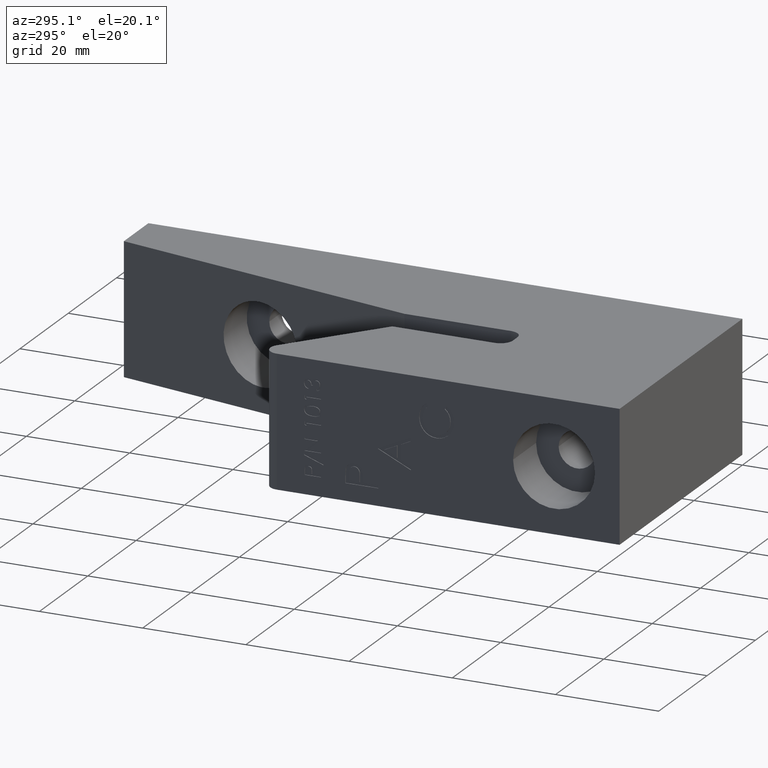
[diagram: clean part render]
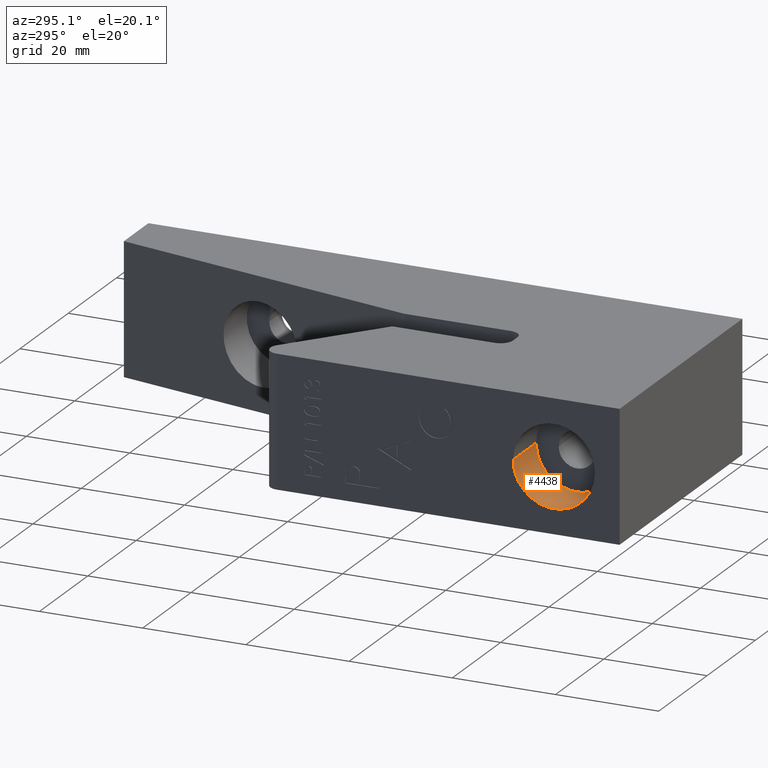
[diagram: same view with one face highlighted and labeled with its STEP entity id]
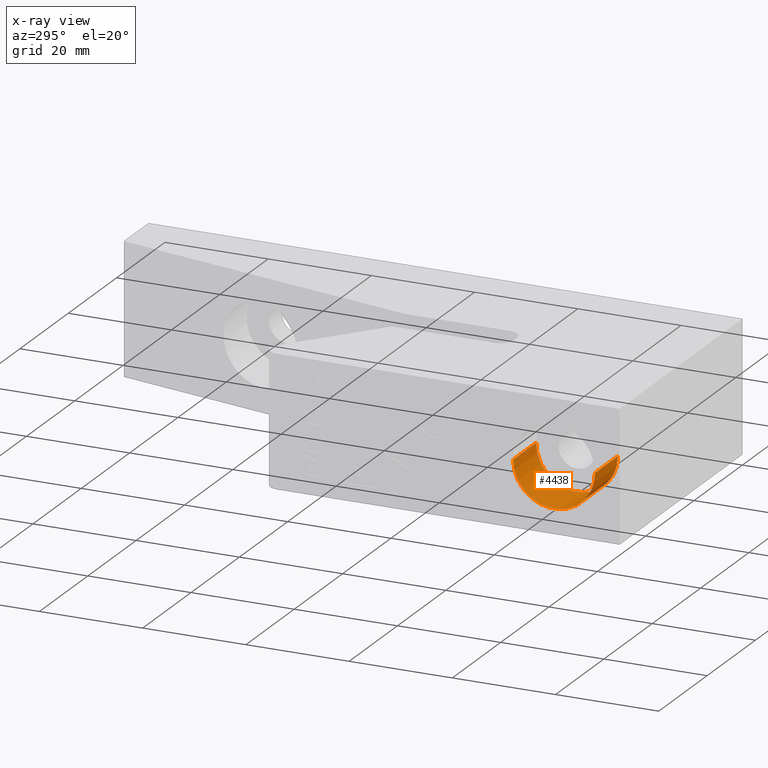
[diagram: x-ray of the same camera — body ghosted, the highlighted face saturated]
A machine part, auxiliary view. The second image highlights one B-rep face of the part: STEP entity #4438.
The next image is the same camera in x-ray: the body ghosted, the highlighted face saturated — about 0% of this face is hidden behind the body in this view.
In plain terms, the highlighted cylindrical surface (partial cylindrical patch) has radius 7.9375 mm, axis along (-1, -0, -0).
Its self-contained STEP definition (entity closure, byte-faithful):
#259 = EDGE_CURVE ( 'NONE', #5705, #5412, #989, .T. ) ;
#260 = EDGE_CURVE ( 'NONE', #5412, #5623, #988, .T. ) ;
#293 = EDGE_CURVE ( 'NONE', #6040, #5623, #6835, .T. ) ;
#295 = EDGE_CURVE ( 'NONE', #5705, #6040, #6832, .T. ) ;
#980 = VECTOR ( 'NONE', #5708, 39.37007874015748100 ) ;
#988 = LINE ( 'NONE', #5714, #980 ) ;
#989 = CIRCLE ( 'NONE', #3755, 0.3125000000000000000 ) ;
#1558 = ORIENTED_EDGE ( 'NONE', *, *, #293, .T. ) ;
#2357 = AXIS2_PLACEMENT_3D ( 'NONE', #3281, #3280, #3286 ) ;
#3280 = DIRECTION ( 'NONE',  ( -1.000000000000000000, -9.713237310806270500E-017, -0.0000000000000000000 ) ) ;
#3281 = CARTESIAN_POINT ( 'NONE',  ( -1.625000000000000000, 0.4999999999999998300, 0.0000000000000000000 ) ) ;
#3286 = DIRECTION ( 'NONE',  ( 0.0000000000000000000, -1.000000000000000000, 0.0000000000000000000 ) ) ;
#3755 = AXIS2_PLACEMENT_3D ( 'NONE', #5453, #5721, #5568 ) ;
#3758 = AXIS2_PLACEMENT_3D ( 'NONE', #6034, #5771, #5574 ) ;
#4438 = ADVANCED_FACE ( 'NONE', ( #4585 ), #4592, .F. ) ;
#4585 = FACE_OUTER_BOUND ( 'NONE', #5134, .T. ) ;
#4592 = CYLINDRICAL_SURFACE ( 'NONE', #2357, 0.3125000000000000000 ) ;
#4974 = ORIENTED_EDGE ( 'NONE', *, *, #259, .F. ) ;
#5032 = ORIENTED_EDGE ( 'NONE', *, *, #260, .F. ) ;
#5134 = EDGE_LOOP ( 'NONE', ( #4974, #5212, #1558, #5032 ) ) ;
#5212 = ORIENTED_EDGE ( 'NONE', *, *, #295, .T. ) ;
#5412 = VERTEX_POINT ( 'NONE', #8255 ) ;
#5453 = CARTESIAN_POINT ( 'NONE',  ( -1.625000000000000000, 0.4999999999999998300, 0.0000000000000000000 ) ) ;
#5568 = DIRECTION ( 'NONE',  ( 0.0000000000000000000, -1.000000000000000000, 0.0000000000000000000 ) ) ;
#5574 = DIRECTION ( 'NONE',  ( 0.0000000000000000000, -1.000000000000000000, 0.0000000000000000000 ) ) ;
#5623 = VERTEX_POINT ( 'NONE', #8280 ) ;
#5705 = VERTEX_POINT ( 'NONE', #8298 ) ;
#5708 = DIRECTION ( 'NONE',  ( -1.000000000000000000, -9.713237310806269200E-017, -0.0000000000000000000 ) ) ;
#5714 = CARTESIAN_POINT ( 'NONE',  ( -1.625000000000000000, 0.1874999999999998300, 0.0000000000000000000 ) ) ;
#5721 = DIRECTION ( 'NONE',  ( -1.000000000000000000, -9.713237310806269200E-017, 0.0000000000000000000 ) ) ;
#5771 = DIRECTION ( 'NONE',  ( -1.000000000000000000, -9.713237310806269200E-017, 0.0000000000000000000 ) ) ;
#5995 = DIRECTION ( 'NONE',  ( -1.000000000000000000, -9.713237310806269200E-017, -0.0000000000000000000 ) ) ;
#6034 = CARTESIAN_POINT ( 'NONE',  ( -2.000000000000000000, 0.4999999999999997800, 0.0000000000000000000 ) ) ;
#6039 = CARTESIAN_POINT ( 'NONE',  ( -1.625000000000000000, 0.8124999999999998900, 3.827021247335477700E-017 ) ) ;
#6040 = VERTEX_POINT ( 'NONE', #8396 ) ;
#6830 = VECTOR ( 'NONE', #5995, 39.37007874015748100 ) ;
#6832 = LINE ( 'NONE', #6039, #6830 ) ;
#6835 = CIRCLE ( 'NONE', #3758, 0.3125000000000000000 ) ;
#8255 = CARTESIAN_POINT ( 'NONE',  ( -1.625000000000000000, 0.1874999999999998300, 0.0000000000000000000 ) ) ;
#8280 = CARTESIAN_POINT ( 'NONE',  ( -2.000000000000000000, 0.1874999999999997800, 0.0000000000000000000 ) ) ;
#8298 = CARTESIAN_POINT ( 'NONE',  ( -1.625000000000000000, 0.8124999999999998900, 3.827021247335477700E-017 ) ) ;
#8396 = CARTESIAN_POINT ( 'NONE',  ( -2.000000000000000000, 0.8124999999999998900, 3.827021247335477100E-017 ) ) ;